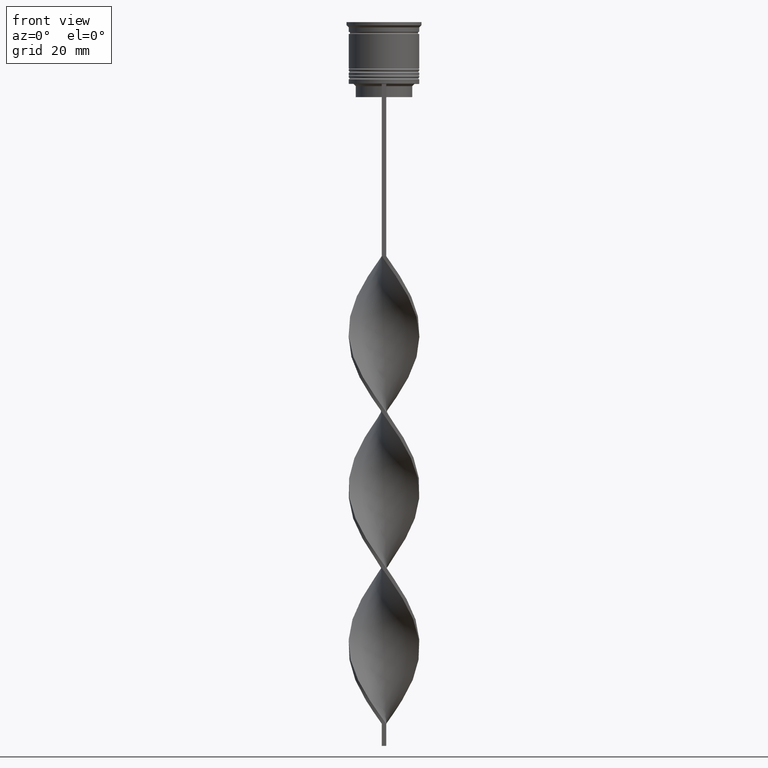
[diagram: clean part render]
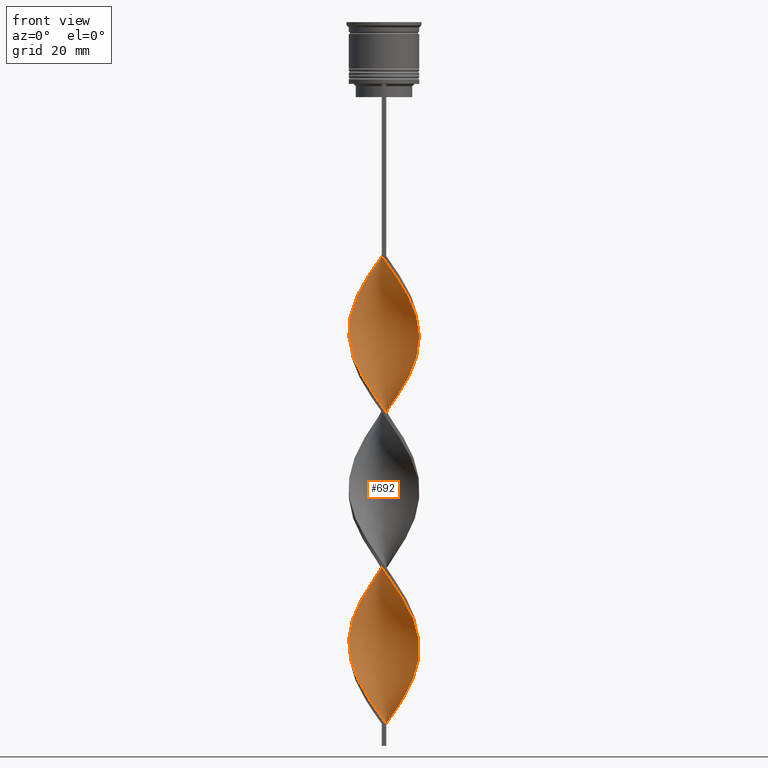
[diagram: same view with one face highlighted and labeled with its STEP entity id]
A machine part, front view. The second image highlights one B-rep face of the part: STEP entity #692.
In plain terms, the highlighted face is a freeform B-spline surface patch.
Its self-contained STEP definition (entity closure, byte-faithful):
#13 = EDGE_CURVE ( 'NONE', #1472, #1951, #1858, .T. ) ;
#23 = CARTESIAN_POINT ( 'NONE',  ( 1.340833882125408216, -7.947447882367158378, -89.51111111111111995 ) ) ;
#35 =( BOUNDED_CURVE ( )  B_SPLINE_CURVE ( 2, ( #1506, #651, #334, #1219, #3251, #670, #1523, #2590, #612, #1804, #2357, #3752, #3175, #3465, #1765, #887, #594, #37, #1748, #2886, #313, #1484, #1315, #1294, #3563, #119, #1591, #137, #1562, #104, #3616, #2470, #764, #2730, #2754, #1334, #2701, #3306, #428, #1260, #1917, #998, #161, #3637, #2431, #2147, #1280, #1865, #2455, #3595, #2415, #411, #1034, #743, #2164, #1051, #1576, #3576, #3320, #2108, #1895, #2179, #3033, #446, #2127, #1611, #1018, #3338, #981, #726, #393, #1880, #3016, #2715, #372, #2399, #1539, #2680, #89, #3269, #686, #1841, #2980, #3287, #704, #3002, #2545, #1428, #3444, #528, #1704 ),
 .UNSPECIFIED., .F., .T. ) 
 B_SPLINE_CURVE_WITH_KNOTS ( ( 3, 2, 2, 2, 2, 2, 2, 2, 2, 2, 2, 2, 2, 2, 2, 2, 2, 2, 2, 2, 2, 2, 2, 2, 2, 2, 2, 2, 2, 2, 2, 2, 2, 2, 2, 2, 2, 2, 2, 2, 2, 2, 2, 2, 2, 3 ),
 ( 0.000000000000000000, 0.01666666666666666644, 0.03333333333333333287, 0.05000000000000000971, 0.06666666666666666574, 0.08333333333333332871, 0.1000000000000000194, 0.1166666666666666546, 0.1333333333333333315, 0.1499999999999999944, 0.1666666666666666574, 0.1833333333333333204, 0.2000000000000000389, 0.2166666666666666741, 0.2333333333333333093, 0.2500000000000000000, 0.2666666666666666630, 0.2833333333333333259, 0.2999999999999999889, 0.3166666666666666519, 0.3333333333333333148, 0.3499999999999999223, 0.3666666666666666408, 0.3833333333333333592, 0.4000000000000000777, 0.4166666666666666852, 0.4333333333333333481, 0.4500000000000000111, 0.4666666666666666186, 0.4833333333333333370, 0.5000000000000000000, 0.5166666666666667185, 0.5333333333333333259, 0.5500000000000000444, 0.5666666666666666519, 0.5833333333333333703, 0.5999999999999999778, 0.6166666666666666963, 0.6333333333333333037, 0.6500000000000000222, 0.6666666666666666297, 0.6833333333333332371, 0.6999999999999998446, 0.7166666666666666741, 0.7333333333333332815, 0.7500000000000000000 ),
 .UNSPECIFIED. ) 
 CURVE ( )  GEOMETRIC_REPRESENTATION_ITEM ( )  RATIONAL_B_SPLINE_CURVE ( ( 1.000000000000000000, 0.9945218953682732899, 1.000000000000000000, 0.9945218953682732899, 1.000000000000000000, 0.9945218953682732899, 1.000000000000000000, 0.9945218953682732899, 1.000000000000000000, 0.9945218953682732899, 1.000000000000000000, 0.9945218953682732899, 1.000000000000000000, 0.9945218953682732899, 1.000000000000000000, 0.9945218953682732899, 1.000000000000000000, 0.9945218953682732899, 1.000000000000000000, 0.9945218953682732899, 1.000000000000000000, 0.9945218953682732899, 1.000000000000000000, 0.9945218953682732899, 1.000000000000000000, 0.9945218953682732899, 1.000000000000000000, 0.9945218953682732899, 1.000000000000000000, 0.9945218953682732899, 1.000000000000000000, 0.9945218953682732899, 1.000000000000000000, 0.9945218953682732899, 1.000000000000000000, 0.9945218953682732899, 1.000000000000000000, 0.9945218953682732899, 1.000000000000000000, 0.9945218953682732899, 1.000000000000000000, 0.9945218953682732899, 1.000000000000000000, 0.9945218953682732899, 1.000000000000000000, 0.9945218953682732899, 1.000000000000000000, 0.9945218953682732899, 1.000000000000000000, 0.9945218953682732899, 1.000000000000000000, 0.9945218953682732899, 1.000000000000000000, 0.9945218953682732899, 1.000000000000000000, 0.9945218953682732899, 1.000000000000000000, 0.9945218953682732899, 1.000000000000000000, 0.9945218953682732899, 1.000000000000000000, 0.9945218953682732899, 1.000000000000000000, 0.9945218953682732899, 1.000000000000000000, 0.9945218953682732899, 1.000000000000000000, 0.9945218953682732899, 1.000000000000000000, 0.9945218953682732899, 1.000000000000000000, 0.9945218953682732899, 1.000000000000000000, 0.9945218953682732899, 1.000000000000000000, 0.9945218953682732899, 1.000000000000000000, 0.9945218953682732899, 1.000000000000000000, 0.9945218953682732899, 1.000000000000000000, 0.9945218953682732899, 1.000000000000000000, 0.9945218953682732899, 1.000000000000000000, 0.9945218953682732899, 1.000000000000000000, 0.9945218953682732899, 1.000000000000000000, 0.9945218953682732899, 1.000000000000000000 ) ) 
 REPRESENTATION_ITEM ( '' )  );
#37 = CARTESIAN_POINT ( 'NONE',  ( -7.763755626116585873, -2.164223167868968734, -73.02222222222221149 ) ) ;
#39 = CARTESIAN_POINT ( 'NONE',  ( 2.152367326908981138, 7.721224960461567477, -156.6444444444444457 ) ) ;
#40 = CARTESIAN_POINT ( 'NONE',  ( -0.3408338821254136564, -8.052552117632835404, -157.8222222222221660 ) ) ;
#89 = CARTESIAN_POINT ( 'NONE',  ( -7.453943633173752303, -2.947664213147154655, -144.8666666666666742 ) ) ;
#91 = CARTESIAN_POINT ( 'NONE',  ( 0.5000000000000002220, 2.666666666666670515, -159.0000000000000000 ) ) ;
#97 = VERTEX_POINT ( 'NONE', #1822 ) ;
#104 = CARTESIAN_POINT ( 'NONE',  ( -0.3408338821254136564, -8.052552117632835404, -87.15555555555553724 ) ) ;
#108 = CARTESIAN_POINT ( 'NONE',  ( 0.4999999999999989453, -7.999999999999996447, -159.0000000000000000 ) ) ;
#110 = CARTESIAN_POINT ( 'NONE',  ( 3.710665873427697381, -7.104995339602904636, -93.04444444444443718 ) ) ;
#119 = CARTESIAN_POINT ( 'NONE',  ( -3.586635261345271442, -7.217742780431598781, -82.44444444444444287 ) ) ;
#137 = CARTESIAN_POINT ( 'NONE',  ( -2.007605570224932023, -7.805721184925808132, -84.79999999999998295 ) ) ;
#139 = CARTESIAN_POINT ( 'NONE',  ( 8.008439394580017634, 0.3389667584570904557, -71.84444444444444855 ) ) ;
#143 = CARTESIAN_POINT ( 'NONE',  ( 2.007605570224933356, 7.805721184925808132, -120.1333333333333400 ) ) ;
#161 = CARTESIAN_POINT ( 'NONE',  ( 7.762960627548698866, -1.996607696852002345, -102.4666666666666686 ) ) ;
#166 = CARTESIAN_POINT ( 'NONE',  ( 5.008911780959354410, 6.314314381860021363, -115.4222222222222456 ) ) ;
#182 = CARTESIAN_POINT ( 'NONE',  ( 4.297773521152313592, -6.766028581145818954, -60.06666666666666288 ) ) ;
#190 = CARTESIAN_POINT ( 'NONE',  ( 5.106790515527261931, 6.178243328853344707, -81.26666666666666572 ) ) ;
#199 = CARTESIAN_POINT ( 'NONE',  ( 7.453943633173757632, -2.947664213147156875, -67.13333333333333997 ) ) ;
#212 = CARTESIAN_POINT ( 'NONE',  ( -2.007605570224932467, 7.805721184925816125, -91.86666666666666003 ) ) ;
#213 = CARTESIAN_POINT ( 'NONE',  ( -5.610593300639724390, -5.724617263609558471, -78.91111111111111143 ) ) ;
#221 = CARTESIAN_POINT ( 'NONE',  ( -6.803297758105514070, -4.321446859207497049, -113.0666666666666629 ) ) ;
#232 = CARTESIAN_POINT ( 'NONE',  ( -8.044066236508127687, -0.5027541397817575364, -70.66666666666667140 ) ) ;
#240 = CARTESIAN_POINT ( 'NONE',  ( 0.3408338821254121020, -8.052552117632842510, -124.8444444444444343 ) ) ;
#249 = CARTESIAN_POINT ( 'NONE',  ( 3.710665873427705375, 7.104995339602909077, -83.62222222222222001 ) ) ;
#251 = CARTESIAN_POINT ( 'NONE',  ( -7.762960627548698866, 1.996607696852001457, -67.13333333333333997 ) ) ;
#257 = CARTESIAN_POINT ( 'NONE',  ( -7.972812552651899587, -1.180687656695935006, -108.3555555555555543 ) ) ;
#268 = CARTESIAN_POINT ( 'NONE',  ( 7.178203230275513214, 3.566987298107780813, -76.55555555555555713 ) ) ;
#281 = CARTESIAN_POINT ( 'NONE',  ( -0.4999999999999998890, -8.000000000000003553, -123.6666666666666714 ) ) ;
#301 = CARTESIAN_POINT ( 'NONE',  ( 0.5000000000000008882, 8.000000000000003553, -159.0000000000000000 ) ) ;
#313 = CARTESIAN_POINT ( 'NONE',  ( -6.678203230275506996, -4.433012701892216079, -76.55555555555555713 ) ) ;
#315 = CARTESIAN_POINT ( 'NONE',  ( 5.106790515527261931, 6.178243328853344707, -151.9333333333333371 ) ) ;
#316 = CARTESIAN_POINT ( 'NONE',  ( -7.763755626116584985, -2.164223167868968734, -143.6888888888888971 ) ) ;
#334 = CARTESIAN_POINT ( 'NONE',  ( -2.152367326908976697, 7.721224960461563036, -55.35555555555555429 ) ) ;
#348 = DIRECTION ( 'NONE',  ( 0.000000000000000000, 1.000000000000000000, 0.000000000000000000 ) ) ;
#356 = CARTESIAN_POINT ( 'NONE',  ( -2.007605570224932023, -7.805721184925808132, -155.4666666666666686 ) ) ;
#358 = CARTESIAN_POINT ( 'NONE',  ( 5.008911780959354410, -6.314314381860031133, -61.24444444444443292 ) ) ;
#365 = LINE ( 'NONE', #2617, #1061 ) ;
#372 = CARTESIAN_POINT ( 'NONE',  ( -8.008439394580010529, 0.3389667584570925096, -140.1555555555555657 ) ) ;
#393 = CARTESIAN_POINT ( 'NONE',  ( -7.178203230275506108, 3.566987298107779925, -135.4444444444444571 ) ) ;
#411 = CARTESIAN_POINT ( 'NONE',  ( 6.212274820320097035, 5.134920145359093802, -113.0666666666666629 ) ) ;
#415 = CARTESIAN_POINT ( 'NONE',  ( 2.963900771692541625, -7.495002038555965029, -91.86666666666666003 ) ) ;
#428 = CARTESIAN_POINT ( 'NONE',  ( 6.279723906998579075, -4.981472438132168001, -97.75555555555555998 ) ) ;
#446 = CARTESIAN_POINT ( 'NONE',  ( -2.963900771692542069, 7.495002038555965029, -127.2000000000000028 ) ) ;
#448 = CARTESIAN_POINT ( 'NONE',  ( -0.4999999999999998890, -8.000000000000003553, -53.00000000000000000 ) ) ;
#470 = CARTESIAN_POINT ( 'NONE',  ( 2.963900771692545177, 7.495002038555971247, -84.79999999999998295 ) ) ;
#481 = CARTESIAN_POINT ( 'NONE',  ( -7.763755626116591202, 2.164223167868974951, -103.6444444444444457 ) ) ;
#482 = CARTESIAN_POINT ( 'NONE',  ( -2.007605570224932023, -7.805721184925808132, -84.79999999999998295 ) ) ;
#489 = CARTESIAN_POINT ( 'NONE',  ( 6.212274820320101476, -5.134920145359100019, -63.60000000000000142 ) ) ;
#492 = CARTESIAN_POINT ( 'NONE',  ( 6.678203230275510549, 4.433012701892212526, -111.8888888888888999 ) ) ;
#499 = CARTESIAN_POINT ( 'NONE',  ( -7.178203230275514990, -3.566987298107776816, -111.8888888888888999 ) ) ;
#504 = EDGE_CURVE ( 'NONE', #1472, #97, #365, .T. ) ;
#508 = CARTESIAN_POINT ( 'NONE',  ( -3.710665873427708927, -7.104995339602907301, -118.9555555555555628 ) ) ;
#520 = CARTESIAN_POINT ( 'NONE',  ( -0.3408338821254087714, 8.052552117632844286, -89.51111111111111995 ) ) ;
#522 = CARTESIAN_POINT ( 'NONE',  ( -2.797120415785101954, -7.511731982678703012, -83.62222222222222001 ) ) ;
#526 = CARTESIAN_POINT ( 'NONE',  ( 0.4999999999999989453, -7.999999999999996447, -159.0000000000000000 ) ) ;
#528 = CARTESIAN_POINT ( 'NONE',  ( -0.3408338821254136564, -8.052552117632835404, -157.8222222222221944 ) ) ;
#541 = CARTESIAN_POINT ( 'NONE',  ( -7.553108702445514133, -2.812527737008061912, -110.7111111111110944 ) ) ;
#543 = CARTESIAN_POINT ( 'NONE',  ( -7.178203230275506108, 3.566987298107779925, -64.77777777777778567 ) ) ;
#549 = CARTESIAN_POINT ( 'NONE',  ( -7.144131640230921398, 3.731105258425349014, -101.2888888888888914 ) ) ;
#559 = CARTESIAN_POINT ( 'NONE',  ( -7.144131640230920510, 3.731105258425349014, -101.2888888888888914 ) ) ;
#560 = CARTESIAN_POINT ( 'NONE',  ( -6.279723906998579963, 4.981472438132166225, -62.42222222222221717 ) ) ;
#581 = CARTESIAN_POINT ( 'NONE',  ( 7.762960627548698866, -1.996607696852002345, -102.4666666666666686 ) ) ;
#594 = CARTESIAN_POINT ( 'NONE',  ( -7.903910931312356780, -1.333488653825362746, -71.84444444444444855 ) ) ;
#601 = CARTESIAN_POINT ( 'NONE',  ( 1.174219726175172562, -7.929136651279328873, -126.0222222222222257 ) ) ;
#612 = CARTESIAN_POINT ( 'NONE',  ( -6.279723906998579963, 4.981472438132166225, -62.42222222222221717 ) ) ;
#618 = CARTESIAN_POINT ( 'NONE',  ( -2.152367326908982026, -7.721224960461567477, -121.3111111111111171 ) ) ;
#651 = CARTESIAN_POINT ( 'NONE',  ( -1.340833882125411103, 7.947447882367156602, -54.17777777777777715 ) ) ;
#655 = CARTESIAN_POINT ( 'NONE',  ( -6.803297758105507853, 4.321446859207494384, -134.2666666666666231 ) ) ;
#670 = CARTESIAN_POINT ( 'NONE',  ( -4.457430975162859355, 6.714988640649843354, -58.88888888888888573 ) ) ;
#686 = CARTESIAN_POINT ( 'NONE',  ( -6.678203230275506996, -4.433012701892216079, -147.2222222222222285 ) ) ;
#692 = ADVANCED_FACE ( 'NONE', ( #1683 ), #718, .T. ) ;
#704 = CARTESIAN_POINT ( 'NONE',  ( -4.297773521152310039, -6.766028581145813625, -151.9333333333333371 ) ) ;
#718 =( BOUNDED_SURFACE ( )  B_SPLINE_SURFACE ( 1, 2, ( 
 ( #3356, #1060, #3417, #3399, #1933, #820, #2248, #842, #3671, #2218, #1984, #860, #2854, #3130, #1136, #3439, #1085, #2823, #2539, #780, #268, #2502, #2273, #1404, #190, #2780, #249, #1361, #1963, #3106, #1998, #520, #1643, #212, #3379, #3148, #1422, #2556, #3691, #803, #2482, #559, #2800, #481, #3647, #3072, #2193, #1949, #3088, #541, #499, #1661, #1700, #1386, #2839, #1103, #3722, #1172, #618, #3241, #3742, #2578, #601, #2346, #3529, #3455, #1755, #875, #2014, #2440, #2171, #2967, #3124, #3686, #2266, #2834, #2760, #3349, #773, #3664, #1469, #2341, #3491, #2609, #315, #1486, #1221, #2628, #39, #3509, #927 ),
 ( #2064, #3142, #1156, #3131, #1405, #1662, #804, #843, #560, #3692, #543, #1716, #251, #1423, #2557, #232, #3723, #1441, #782, #2802, #2579, #1137, #213, #1387, #2274, #2523, #522, #482, #1363, #1104, #3475, #23, #3184, #415, #110, #3580, #2326, #2892, #3456, #2719, #969, #1267, #581, #1735, #2113, #3274, #1566, #1002, #1596, #3325, #492, #1095, #2208, #166, #2226, #2460, #3369, #143, #749, #1900, #3040, #3390, #1617, #3235, #1785, #2404, #2359, #2945, #1283, #655, #1542, #1240, #2418, #1264, #2132, #1767, #2905, #316, #1487, #3566, #2380, #3525, #1806, #2963, #2629, #967, #2926, #356, #2097, #40, #2662 ) ),
 .UNSPECIFIED., .F., .F., .F. ) 
 B_SPLINE_SURFACE_WITH_KNOTS ( ( 2, 2 ),
 ( 3, 2, 2, 2, 2, 2, 2, 2, 2, 2, 2, 2, 2, 2, 2, 2, 2, 2, 2, 2, 2, 2, 2, 2, 2, 2, 2, 2, 2, 2, 2, 2, 2, 2, 2, 2, 2, 2, 2, 2, 2, 2, 2, 2, 2, 3 ),
 ( 0.000000000000000000, 1.000000000000000000 ),
 ( 0.000000000000000000, 0.01666666666666666644, 0.03333333333333333287, 0.05000000000000000278, 0.06666666666666666574, 0.08333333333333332871, 0.1000000000000000056, 0.1166666666666666685, 0.1333333333333333315, 0.1499999999999999944, 0.1666666666666666574, 0.1833333333333333204, 0.2000000000000000111, 0.2166666666666666741, 0.2333333333333333370, 0.2500000000000000000, 0.2666666666666666630, 0.2833333333333333259, 0.2999999999999999889, 0.3166666666666666519, 0.3333333333333333148, 0.3499999999999999778, 0.3666666666666666408, 0.3833333333333333592, 0.4000000000000000222, 0.4166666666666666852, 0.4333333333333333481, 0.4500000000000000111, 0.4666666666666666741, 0.4833333333333333370, 0.5000000000000000000, 0.5166666666666667185, 0.5333333333333333259, 0.5500000000000000444, 0.5666666666666666519, 0.5833333333333333703, 0.5999999999999999778, 0.6166666666666666963, 0.6333333333333333037, 0.6500000000000000222, 0.6666666666666666297, 0.6833333333333333481, 0.6999999999999999556, 0.7166666666666666741, 0.7333333333333332815, 0.7500000000000000000 ),
 .UNSPECIFIED. ) 
 GEOMETRIC_REPRESENTATION_ITEM ( )  RATIONAL_B_SPLINE_SURFACE ( (
 ( 1.000000000000000000, 0.9945218953682732899, 1.000000000000000000, 0.9945218953682732899, 1.000000000000000000, 0.9945218953682732899, 1.000000000000000000, 0.9945218953682732899, 1.000000000000000000, 0.9945218953682732899, 1.000000000000000000, 0.9945218953682732899, 1.000000000000000000, 0.9945218953682732899, 1.000000000000000000, 0.9945218953682732899, 1.000000000000000000, 0.9945218953682732899, 1.000000000000000000, 0.9945218953682732899, 1.000000000000000000, 0.9945218953682732899, 1.000000000000000000, 0.9945218953682732899, 1.000000000000000000, 0.9945218953682732899, 1.000000000000000000, 0.9945218953682732899, 1.000000000000000000, 0.9945218953682732899, 1.000000000000000000, 0.9945218953682732899, 1.000000000000000000, 0.9945218953682732899, 1.000000000000000000, 0.9945218953682732899, 1.000000000000000000, 0.9945218953682732899, 1.000000000000000000, 0.9945218953682732899, 1.000000000000000000, 0.9945218953682732899, 1.000000000000000000, 0.9945218953682732899, 1.000000000000000000, 0.9945218953682732899, 1.000000000000000000, 0.9945218953682732899, 1.000000000000000000, 0.9945218953682732899, 1.000000000000000000, 0.9945218953682732899, 1.000000000000000000, 0.9945218953682732899, 1.000000000000000000, 0.9945218953682732899, 1.000000000000000000, 0.9945218953682732899, 1.000000000000000000, 0.9945218953682732899, 1.000000000000000000, 0.9945218953682732899, 1.000000000000000000, 0.9945218953682732899, 1.000000000000000000, 0.9945218953682732899, 1.000000000000000000, 0.9945218953682732899, 1.000000000000000000, 0.9945218953682732899, 1.000000000000000000, 0.9945218953682732899, 1.000000000000000000, 0.9945218953682732899, 1.000000000000000000, 0.9945218953682732899, 1.000000000000000000, 0.9945218953682732899, 1.000000000000000000, 0.9945218953682732899, 1.000000000000000000, 0.9945218953682732899, 1.000000000000000000, 0.9945218953682732899, 1.000000000000000000, 0.9945218953682732899, 1.000000000000000000, 0.9945218953682732899, 1.000000000000000000, 0.9945218953682732899, 1.000000000000000000),
 ( 1.000000000000000000, 0.9945218953682732899, 1.000000000000000000, 0.9945218953682732899, 1.000000000000000000, 0.9945218953682732899, 1.000000000000000000, 0.9945218953682732899, 1.000000000000000000, 0.9945218953682732899, 1.000000000000000000, 0.9945218953682732899, 1.000000000000000000, 0.9945218953682732899, 1.000000000000000000, 0.9945218953682732899, 1.000000000000000000, 0.9945218953682732899, 1.000000000000000000, 0.9945218953682732899, 1.000000000000000000, 0.9945218953682732899, 1.000000000000000000, 0.9945218953682732899, 1.000000000000000000, 0.9945218953682732899, 1.000000000000000000, 0.9945218953682732899, 1.000000000000000000, 0.9945218953682732899, 1.000000000000000000, 0.9945218953682732899, 1.000000000000000000, 0.9945218953682732899, 1.000000000000000000, 0.9945218953682732899, 1.000000000000000000, 0.9945218953682732899, 1.000000000000000000, 0.9945218953682732899, 1.000000000000000000, 0.9945218953682732899, 1.000000000000000000, 0.9945218953682732899, 1.000000000000000000, 0.9945218953682732899, 1.000000000000000000, 0.9945218953682732899, 1.000000000000000000, 0.9945218953682732899, 1.000000000000000000, 0.9945218953682732899, 1.000000000000000000, 0.9945218953682732899, 1.000000000000000000, 0.9945218953682732899, 1.000000000000000000, 0.9945218953682732899, 1.000000000000000000, 0.9945218953682732899, 1.000000000000000000, 0.9945218953682732899, 1.000000000000000000, 0.9945218953682732899, 1.000000000000000000, 0.9945218953682732899, 1.000000000000000000, 0.9945218953682732899, 1.000000000000000000, 0.9945218953682732899, 1.000000000000000000, 0.9945218953682732899, 1.000000000000000000, 0.9945218953682732899, 1.000000000000000000, 0.9945218953682732899, 1.000000000000000000, 0.9945218953682732899, 1.000000000000000000, 0.9945218953682732899, 1.000000000000000000, 0.9945218953682732899, 1.000000000000000000, 0.9945218953682732899, 1.000000000000000000, 0.9945218953682732899, 1.000000000000000000, 0.9945218953682732899, 1.000000000000000000, 0.9945218953682732899, 1.000000000000000000) ) ) 
 REPRESENTATION_ITEM ( '' )  SURFACE ( )  );
#726 = CARTESIAN_POINT ( 'NONE',  ( -6.803297758105507853, 4.321446859207494384, -134.2666666666666515 ) ) ;
#743 = CARTESIAN_POINT ( 'NONE',  ( 5.008911780959355298, 6.314314381860021363, -115.4222222222222314 ) ) ;
#746 = CARTESIAN_POINT ( 'NONE',  ( 4.457430975162866460, 6.714988640649846019, -82.44444444444444287 ) ) ;
#749 = CARTESIAN_POINT ( 'NONE',  ( 1.174219726175175671, 7.929136651279319992, -121.3111111111111171 ) ) ;
#764 = CARTESIAN_POINT ( 'NONE',  ( 2.152367326908974476, -7.721224960461563036, -90.68888888888888289 ) ) ;
#773 = CARTESIAN_POINT ( 'NONE',  ( 7.762960627548706860, 1.996607696852002789, -144.8666666666666742 ) ) ;
#780 = CARTESIAN_POINT ( 'NONE',  ( 7.553108702445513245, 2.812527737008064577, -75.37777777777777999 ) ) ;
#782 = CARTESIAN_POINT ( 'NONE',  ( -7.453943633173752303, -2.947664213147154655, -74.20000000000000284 ) ) ;
#791 = CARTESIAN_POINT ( 'NONE',  ( 7.178203230275513214, 3.566987298107780813, -76.55555555555555713 ) ) ;
#803 = CARTESIAN_POINT ( 'NONE',  ( -6.212274820320100588, 5.134920145359100019, -98.93333333333332291 ) ) ;
#804 = CARTESIAN_POINT ( 'NONE',  ( -5.106790515527257490, 6.178243328853340266, -60.06666666666666288 ) ) ;
#811 = CARTESIAN_POINT ( 'NONE',  ( 3.586635261345271886, -7.217742780431606775, -129.5555555555555429 ) ) ;
#820 = CARTESIAN_POINT ( 'NONE',  ( 3.586635261345271442, -7.217742780431606775, -58.88888888888889284 ) ) ;
#829 = CARTESIAN_POINT ( 'NONE',  ( 2.152367326908981138, 7.721224960461567477, -156.6444444444444457 ) ) ;
#831 = ORIENTED_EDGE ( 'NONE', *, *, #1114, .T. ) ;
#842 = CARTESIAN_POINT ( 'NONE',  ( 5.008911780959353521, -6.314314381860030245, -61.24444444444443292 ) ) ;
#843 = CARTESIAN_POINT ( 'NONE',  ( -5.756150055891653849, 5.641498017056839842, -61.24444444444443292 ) ) ;
#852 = CARTESIAN_POINT ( 'NONE',  ( -6.678203230275511437, 4.433012701892224072, -100.1111111111111143 ) ) ;
#860 = CARTESIAN_POINT ( 'NONE',  ( 7.144131640230924063, -3.731105258425344129, -65.95555555555556282 ) ) ;
#866 = CARTESIAN_POINT ( 'NONE',  ( 7.178203230275513214, 3.566987298107780813, -147.2222222222222285 ) ) ;
#875 = CARTESIAN_POINT ( 'NONE',  ( 5.008911780959353521, -6.314314381860030245, -131.9111111111111256 ) ) ;
#885 = CARTESIAN_POINT ( 'NONE',  ( 7.972812552651897811, 1.180687656695939447, -143.6888888888888971 ) ) ;
#887 = CARTESIAN_POINT ( 'NONE',  ( -8.044066236508127687, -0.5027541397817575364, -70.66666666666667140 ) ) ;
#927 = CARTESIAN_POINT ( 'NONE',  ( 0.5000000000000008882, 8.000000000000003553, -159.0000000000000000 ) ) ;
#946 = CARTESIAN_POINT ( 'NONE',  ( -4.297773521152312703, 6.766028581145818954, -95.40000000000000568 ) ) ;
#967 = CARTESIAN_POINT ( 'NONE',  ( -3.586635261345270997, -7.217742780431598781, -153.1111111111110858 ) ) ;
#969 = CARTESIAN_POINT ( 'NONE',  ( 7.178203230275505220, -3.566987298107782589, -100.1111111111111143 ) ) ;
#971 = CARTESIAN_POINT ( 'NONE',  ( 3.586635261345271886, -7.217742780431606775, -58.88888888888888573 ) ) ;
#981 = CARTESIAN_POINT ( 'NONE',  ( -6.279723906998579963, 4.981472438132166225, -133.0888888888889028 ) ) ;
#998 = CARTESIAN_POINT ( 'NONE',  ( 7.553108702445503475, -2.812527737008069018, -101.2888888888888914 ) ) ;
#1002 = CARTESIAN_POINT ( 'NONE',  ( 7.763755626116586761, 2.164223167868963404, -108.3555555555555543 ) ) ;
#1018 = CARTESIAN_POINT ( 'NONE',  ( -5.106790515527257490, 6.178243328853340266, -130.7333333333333485 ) ) ;
#1034 = CARTESIAN_POINT ( 'NONE',  ( 5.610593300639725278, 5.724617263609557583, -114.2444444444444542 ) ) ;
#1036 = CARTESIAN_POINT ( 'NONE',  ( 6.803297758105513182, 4.321446859207497937, -77.73333333333333428 ) ) ;
#1051 = CARTESIAN_POINT ( 'NONE',  ( 3.586635261345272330, 7.217742780431597893, -117.7777777777777857 ) ) ;
#1060 = CARTESIAN_POINT ( 'NONE',  ( 0.3408338821254121020, -8.052552117632842510, -54.17777777777777715 ) ) ;
#1061 = VECTOR ( 'NONE', #348, 1000.000000000000000 ) ;
#1070 = CARTESIAN_POINT ( 'NONE',  ( 7.762960627548706860, 1.996607696852002789, -74.20000000000000284 ) ) ;
#1085 = CARTESIAN_POINT ( 'NONE',  ( 8.008439394580017634, 0.3389667584570904557, -71.84444444444444855 ) ) ;
#1095 = CARTESIAN_POINT ( 'NONE',  ( 6.212274820320097035, 5.134920145359093802, -113.0666666666666487 ) ) ;
#1103 = CARTESIAN_POINT ( 'NONE',  ( -4.457430975162865572, -6.714988640649846019, -117.7777777777777999 ) ) ;
#1104 = CARTESIAN_POINT ( 'NONE',  ( -0.3408338821254136564, -8.052552117632835404, -87.15555555555553724 ) ) ;
#1109 = CARTESIAN_POINT ( 'NONE',  ( 5.008911780959354410, -6.314314381860031133, -131.9111111111111256 ) ) ;
#1114 = EDGE_CURVE ( 'NONE', #97, #2428, #35, .T. ) ;
#1126 = CARTESIAN_POINT ( 'NONE',  ( -5.756150055891663619, -5.641498017056838954, -115.4222222222222314 ) ) ;
#1136 = CARTESIAN_POINT ( 'NONE',  ( 7.903910931312363886, -1.333488653825366521, -69.48888888888889426 ) ) ;
#1137 = CARTESIAN_POINT ( 'NONE',  ( -6.212274820320096147, -5.134920145359094690, -77.73333333333333428 ) ) ;
#1148 = CARTESIAN_POINT ( 'NONE',  ( 8.008439394580017634, 0.3389667584570904557, -142.5111111111111200 ) ) ;
#1156 = CARTESIAN_POINT ( 'NONE',  ( -2.152367326908976697, 7.721224960461563036, -55.35555555555555429 ) ) ;
#1165 = CARTESIAN_POINT ( 'NONE',  ( 7.903910931312363886, -1.333488653825366521, -140.1555555555555657 ) ) ;
#1172 = CARTESIAN_POINT ( 'NONE',  ( -2.963900771692546510, -7.495002038555971247, -120.1333333333333400 ) ) ;
#1219 = CARTESIAN_POINT ( 'NONE',  ( -2.963900771692542069, 7.495002038555965029, -56.53333333333332433 ) ) ;
#1221 = CARTESIAN_POINT ( 'NONE',  ( 3.710665873427705375, 7.104995339602909077, -154.2888888888888914 ) ) ;
#1240 = CARTESIAN_POINT ( 'NONE',  ( -7.553108702445506140, 2.812527737008064133, -136.6222222222222342 ) ) ;
#1243 = CARTESIAN_POINT ( 'NONE',  ( -0.3408338821254087714, 8.052552117632844286, -89.51111111111110574 ) ) ;
#1260 = CARTESIAN_POINT ( 'NONE',  ( 6.803297758105506965, -4.321446859207495272, -98.93333333333332291 ) ) ;
#1264 = CARTESIAN_POINT ( 'NONE',  ( -7.972812552651889817, 1.180687656695941001, -138.9777777777777885 ) ) ;
#1267 = CARTESIAN_POINT ( 'NONE',  ( 7.553108702445504363, -2.812527737008069462, -101.2888888888888914 ) ) ;
#1280 = CARTESIAN_POINT ( 'NONE',  ( 7.903910931312356780, 1.333488653825360082, -107.1777777777777771 ) ) ;
#1283 = CARTESIAN_POINT ( 'NONE',  ( -6.279723906998579963, 4.981472438132166225, -133.0888888888889028 ) ) ;
#1294 = CARTESIAN_POINT ( 'NONE',  ( -5.008911780959351745, -6.314314381860024028, -80.08888888888888857 ) ) ;
#1315 = CARTESIAN_POINT ( 'NONE',  ( -5.610593300639724390, -5.724617263609558471, -78.91111111111111143 ) ) ;
#1334 = CARTESIAN_POINT ( 'NONE',  ( 4.457430975162857578, -6.714988640649844243, -94.22222222222221433 ) ) ;
#1336 = CARTESIAN_POINT ( 'NONE',  ( 5.106790515527261931, 6.178243328853344707, -81.26666666666666572 ) ) ;
#1361 = CARTESIAN_POINT ( 'NONE',  ( 2.963900771692545177, 7.495002038555971247, -84.79999999999998295 ) ) ;
#1363 = CARTESIAN_POINT ( 'NONE',  ( -1.174219726175174561, -7.929136651279319992, -85.97777777777777430 ) ) ;
#1373 = CARTESIAN_POINT ( 'NONE',  ( 3.710665873427705375, 7.104995339602909077, -154.2888888888888914 ) ) ;
#1386 = CARTESIAN_POINT ( 'NONE',  ( -5.756150055891663619, -5.641498017056838954, -115.4222222222222456 ) ) ;
#1387 = CARTESIAN_POINT ( 'NONE',  ( -5.008911780959350857, -6.314314381860024028, -80.08888888888890278 ) ) ;
#1393 = CARTESIAN_POINT ( 'NONE',  ( -8.044066236508134793, 0.5027541397817596458, -106.0000000000000000 ) ) ;
#1404 = CARTESIAN_POINT ( 'NONE',  ( 5.756150055891660955, 5.641498017056843395, -80.08888888888890278 ) ) ;
#1405 = CARTESIAN_POINT ( 'NONE',  ( -3.710665873427700490, 7.104995339602903748, -57.71111111111110858 ) ) ;
#1413 = CARTESIAN_POINT ( 'NONE',  ( 4.457430975162866460, 6.714988640649846019, -153.1111111111111143 ) ) ;
#1422 = CARTESIAN_POINT ( 'NONE',  ( -4.297773521152312703, 6.766028581145818954, -95.40000000000000568 ) ) ;
#1423 = CARTESIAN_POINT ( 'NONE',  ( -7.972812552651889817, 1.180687656695941001, -68.31111111111111711 ) ) ;
#1428 = CARTESIAN_POINT ( 'NONE',  ( -2.007605570224932023, -7.805721184925808132, -155.4666666666666686 ) ) ;
#1430 = CARTESIAN_POINT ( 'NONE',  ( -7.453943633173757632, 2.947664213147157763, -102.4666666666666686 ) ) ;
#1441 = CARTESIAN_POINT ( 'NONE',  ( -7.763755626116584985, -2.164223167868968734, -73.02222222222219727 ) ) ;
#1469 = CARTESIAN_POINT ( 'NONE',  ( 7.178203230275513214, 3.566987298107780813, -147.2222222222222285 ) ) ;
#1472 = VERTEX_POINT ( 'NONE', #3132 ) ;
#1484 = CARTESIAN_POINT ( 'NONE',  ( -6.212274820320096147, -5.134920145359094690, -77.73333333333333428 ) ) ;
#1486 = CARTESIAN_POINT ( 'NONE',  ( 4.457430975162865572, 6.714988640649846907, -153.1111111111110858 ) ) ;
#1487 = CARTESIAN_POINT ( 'NONE',  ( -7.453943633173752303, -2.947664213147154655, -144.8666666666666742 ) ) ;
#1506 = CARTESIAN_POINT ( 'NONE',  ( -0.4999999999999998890, 7.999999999999996447, -53.00000000000000000 ) ) ;
#1523 = CARTESIAN_POINT ( 'NONE',  ( -5.106790515527257490, 6.178243328853340266, -60.06666666666666288 ) ) ;
#1526 = CARTESIAN_POINT ( 'NONE',  ( 7.763755626116591202, -2.164223167868972286, -68.31111111111111711 ) ) ;
#1539 = CARTESIAN_POINT ( 'NONE',  ( -7.903910931312356780, -1.333488653825362746, -142.5111111111111200 ) ) ;
#1542 = CARTESIAN_POINT ( 'NONE',  ( -7.178203230275506108, 3.566987298107779925, -135.4444444444444571 ) ) ;
#1562 = CARTESIAN_POINT ( 'NONE',  ( -1.174219726175174561, -7.929136651279319992, -85.97777777777777430 ) ) ;
#1566 = CARTESIAN_POINT ( 'NONE',  ( 7.903910931312356780, 1.333488653825360082, -107.1777777777777771 ) ) ;
#1576 = CARTESIAN_POINT ( 'NONE',  ( 2.797120415785105951, 7.511731982678701236, -118.9555555555555628 ) ) ;
#1591 = CARTESIAN_POINT ( 'NONE',  ( -2.797120415785101954, -7.511731982678703012, -83.62222222222222001 ) ) ;
#1593 = CARTESIAN_POINT ( 'NONE',  ( 7.903910931312363886, -1.333488653825366521, -69.48888888888889426 ) ) ;
#1596 = CARTESIAN_POINT ( 'NONE',  ( 7.453943633173752303, 2.947664213147153767, -109.5333333333333456 ) ) ;
#1611 = CARTESIAN_POINT ( 'NONE',  ( -4.457430975162859355, 6.714988640649843354, -129.5555555555555429 ) ) ;
#1614 = CARTESIAN_POINT ( 'NONE',  ( 2.007605570224933356, -7.805721184925815237, -56.53333333333332433 ) ) ;
#1617 = CARTESIAN_POINT ( 'NONE',  ( -2.152367326908976697, 7.721224960461563036, -126.0222222222222257 ) ) ;
#1635 = CARTESIAN_POINT ( 'NONE',  ( 2.797120415785102399, -7.511731982678711006, -57.71111111111110858 ) ) ;
#1643 = CARTESIAN_POINT ( 'NONE',  ( -1.174219726175170564, 7.929136651279328873, -90.68888888888888289 ) ) ;
#1652 = CARTESIAN_POINT ( 'NONE',  ( -1.174219726175170564, 7.929136651279328873, -90.68888888888888289 ) ) ;
#1661 = CARTESIAN_POINT ( 'NONE',  ( -6.803297758105513182, -4.321446859207497049, -113.0666666666666487 ) ) ;
#1662 = CARTESIAN_POINT ( 'NONE',  ( -4.457430975162859355, 6.714988640649843354, -58.88888888888889284 ) ) ;
#1671 = CARTESIAN_POINT ( 'NONE',  ( -7.553108702445513245, -2.812527737008062356, -110.7111111111111086 ) ) ;
#1683 = FACE_OUTER_BOUND ( 'NONE', #3645, .T. ) ;
#1690 = CARTESIAN_POINT ( 'NONE',  ( 8.044066236508134793, -0.5027541397817586466, -141.3333333333333428 ) ) ;
#1700 = CARTESIAN_POINT ( 'NONE',  ( -6.279723906998587957, -4.981472438132167113, -114.2444444444444542 ) ) ;
#1704 = CARTESIAN_POINT ( 'NONE',  ( 0.4999999999999989453, -7.999999999999996447, -159.0000000000000000 ) ) ;
#1706 = CARTESIAN_POINT ( 'NONE',  ( 6.678203230275512325, -4.433012701892221408, -135.4444444444444571 ) ) ;
#1716 = CARTESIAN_POINT ( 'NONE',  ( -7.553108702445506140, 2.812527737008064133, -65.95555555555556282 ) ) ;
#1735 = CARTESIAN_POINT ( 'NONE',  ( 7.972812552651889817, -1.180687656695943666, -103.6444444444444457 ) ) ;
#1747 = CARTESIAN_POINT ( 'NONE',  ( -7.903910931312363886, 1.333488653825370962, -104.8222222222222229 ) ) ;
#1748 = CARTESIAN_POINT ( 'NONE',  ( -7.453943633173752303, -2.947664213147154655, -74.20000000000000284 ) ) ;
#1755 = CARTESIAN_POINT ( 'NONE',  ( 4.297773521152313592, -6.766028581145818954, -130.7333333333333485 ) ) ;
#1765 = CARTESIAN_POINT ( 'NONE',  ( -8.008439394580010529, 0.3389667584570925096, -69.48888888888889426 ) ) ;
#1767 = CARTESIAN_POINT ( 'NONE',  ( -8.044066236508127687, -0.5027541397817575364, -141.3333333333333428 ) ) ;
#1785 = CARTESIAN_POINT ( 'NONE',  ( -3.710665873427700490, 7.104995339602903748, -128.3777777777777942 ) ) ;
#1804 = CARTESIAN_POINT ( 'NONE',  ( -6.803297758105507853, 4.321446859207494384, -63.60000000000000142 ) ) ;
#1806 = CARTESIAN_POINT ( 'NONE',  ( -5.610593300639724390, -5.724617263609558471, -149.5777777777777828 ) ) ;
#1811 = CARTESIAN_POINT ( 'NONE',  ( 0.3408338821254121020, -8.052552117632842510, -54.17777777777777715 ) ) ;
#1822 = CARTESIAN_POINT ( 'NONE',  ( -0.4999999999999998890, 7.999999999999996447, -53.00000000000000000 ) ) ;
#1841 = CARTESIAN_POINT ( 'NONE',  ( -6.212274820320096147, -5.134920145359094690, -148.4000000000000057 ) ) ;
#1858 =( BOUNDED_CURVE ( )  B_SPLINE_CURVE ( 2, ( #448, #1811, #3639, #1614, #1635, #971, #182, #358, #3340, #489, #2948, #3618, #199, #1526, #1593, #2205, #139, #2756, #1070, #1920, #791, #1036, #2492, #2664, #1336, #746, #3366, #470, #3657, #2472, #1940, #1243, #1652, #2732, #3527, #2789, #946, #2083, #3239, #2100, #852, #549, #1430, #2224, #1747, #1393, #3750, #257, #2814, #1671, #2865, #221, #2260, #1126, #3464, #3431, #508, #2829, #2529, #2296, #281, #240, #3698, #2845, #1992, #811, #3137, #1109, #2885, #3734, #1706, #2240, #3407, #2567, #1165, #1690, #1148, #885, #2282, #3447, #866, #3096, #2005, #2024, #3388, #1413, #1373, #1955, #829, #3173, #2547 ),
 .UNSPECIFIED., .F., .T. ) 
 B_SPLINE_CURVE_WITH_KNOTS ( ( 3, 2, 2, 2, 2, 2, 2, 2, 2, 2, 2, 2, 2, 2, 2, 2, 2, 2, 2, 2, 2, 2, 2, 2, 2, 2, 2, 2, 2, 2, 2, 2, 2, 2, 2, 2, 2, 2, 2, 2, 2, 2, 2, 2, 2, 3 ),
 ( 0.000000000000000000, 0.01666666666666666644, 0.03333333333333333287, 0.05000000000000000971, 0.06666666666666666574, 0.08333333333333332871, 0.1000000000000000194, 0.1166666666666666546, 0.1333333333333333315, 0.1499999999999999944, 0.1666666666666666574, 0.1833333333333333204, 0.2000000000000000389, 0.2166666666666666741, 0.2333333333333333093, 0.2500000000000000000, 0.2666666666666666630, 0.2833333333333333259, 0.2999999999999999889, 0.3166666666666666519, 0.3333333333333333148, 0.3499999999999999223, 0.3666666666666666408, 0.3833333333333333592, 0.4000000000000000777, 0.4166666666666666852, 0.4333333333333333481, 0.4500000000000000111, 0.4666666666666666186, 0.4833333333333333370, 0.5000000000000000000, 0.5166666666666667185, 0.5333333333333333259, 0.5500000000000000444, 0.5666666666666666519, 0.5833333333333333703, 0.5999999999999999778, 0.6166666666666666963, 0.6333333333333333037, 0.6500000000000000222, 0.6666666666666666297, 0.6833333333333332371, 0.6999999999999998446, 0.7166666666666666741, 0.7333333333333332815, 0.7500000000000000000 ),
 .UNSPECIFIED. ) 
 CURVE ( )  GEOMETRIC_REPRESENTATION_ITEM ( )  RATIONAL_B_SPLINE_CURVE ( ( 1.000000000000000000, 0.9945218953682732899, 1.000000000000000000, 0.9945218953682732899, 1.000000000000000000, 0.9945218953682732899, 1.000000000000000000, 0.9945218953682732899, 1.000000000000000000, 0.9945218953682732899, 1.000000000000000000, 0.9945218953682732899, 1.000000000000000000, 0.9945218953682732899, 1.000000000000000000, 0.9945218953682732899, 1.000000000000000000, 0.9945218953682732899, 1.000000000000000000, 0.9945218953682732899, 1.000000000000000000, 0.9945218953682732899, 1.000000000000000000, 0.9945218953682732899, 1.000000000000000000, 0.9945218953682732899, 1.000000000000000000, 0.9945218953682732899, 1.000000000000000000, 0.9945218953682732899, 1.000000000000000000, 0.9945218953682732899, 1.000000000000000000, 0.9945218953682732899, 1.000000000000000000, 0.9945218953682732899, 1.000000000000000000, 0.9945218953682732899, 1.000000000000000000, 0.9945218953682732899, 1.000000000000000000, 0.9945218953682732899, 1.000000000000000000, 0.9945218953682732899, 1.000000000000000000, 0.9945218953682732899, 1.000000000000000000, 0.9945218953682732899, 1.000000000000000000, 0.9945218953682732899, 1.000000000000000000, 0.9945218953682732899, 1.000000000000000000, 0.9945218953682732899, 1.000000000000000000, 0.9945218953682732899, 1.000000000000000000, 0.9945218953682732899, 1.000000000000000000, 0.9945218953682732899, 1.000000000000000000, 0.9945218953682732899, 1.000000000000000000, 0.9945218953682732899, 1.000000000000000000, 0.9945218953682732899, 1.000000000000000000, 0.9945218953682732899, 1.000000000000000000, 0.9945218953682732899, 1.000000000000000000, 0.9945218953682732899, 1.000000000000000000, 0.9945218953682732899, 1.000000000000000000, 0.9945218953682732899, 1.000000000000000000, 0.9945218953682732899, 1.000000000000000000, 0.9945218953682732899, 1.000000000000000000, 0.9945218953682732899, 1.000000000000000000, 0.9945218953682732899, 1.000000000000000000, 0.9945218953682732899, 1.000000000000000000, 0.9945218953682732899, 1.000000000000000000, 0.9945218953682732899, 1.000000000000000000 ) ) 
 REPRESENTATION_ITEM ( '' )  );
#1865 = CARTESIAN_POINT ( 'NONE',  ( 7.763755626116586761, 2.164223167868963404, -108.3555555555555543 ) ) ;
#1880 = CARTESIAN_POINT ( 'NONE',  ( -7.553108702445505251, 2.812527737008064577, -136.6222222222222342 ) ) ;
#1895 = CARTESIAN_POINT ( 'NONE',  ( -0.4999999999999998890, 7.999999999999996447, -123.6666666666666714 ) ) ;
#1900 = CARTESIAN_POINT ( 'NONE',  ( 0.3408338821254181528, 8.052552117632835404, -122.4888888888888800 ) ) ;
#1917 = CARTESIAN_POINT ( 'NONE',  ( 7.178203230275505220, -3.566987298107782589, -100.1111111111111143 ) ) ;
#1920 = CARTESIAN_POINT ( 'NONE',  ( 7.553108702445512357, 2.812527737008065021, -75.37777777777777999 ) ) ;
#1933 = CARTESIAN_POINT ( 'NONE',  ( 2.797120415785102399, -7.511731982678711006, -57.71111111111110858 ) ) ;
#1940 = CARTESIAN_POINT ( 'NONE',  ( 0.5000000000000008882, 8.000000000000003553, -88.33333333333332860 ) ) ;
#1949 = CARTESIAN_POINT ( 'NONE',  ( -7.972812552651898699, -1.180687656695935006, -108.3555555555555543 ) ) ;
#1951 = VERTEX_POINT ( 'NONE', #301 ) ;
#1955 = CARTESIAN_POINT ( 'NONE',  ( 2.963900771692545177, 7.495002038555971247, -155.4666666666666686 ) ) ;
#1963 = CARTESIAN_POINT ( 'NONE',  ( 2.152367326908981138, 7.721224960461567477, -85.97777777777777430 ) ) ;
#1984 = CARTESIAN_POINT ( 'NONE',  ( 6.678203230275512325, -4.433012701892221408, -64.77777777777778567 ) ) ;
#1992 = CARTESIAN_POINT ( 'NONE',  ( 2.797120415785102399, -7.511731982678711006, -128.3777777777777942 ) ) ;
#1998 = CARTESIAN_POINT ( 'NONE',  ( 0.5000000000000008882, 8.000000000000003553, -88.33333333333332860 ) ) ;
#2005 = CARTESIAN_POINT ( 'NONE',  ( 6.279723906998587069, 4.981472438132168001, -149.5777777777777828 ) ) ;
#2014 = CARTESIAN_POINT ( 'NONE',  ( 5.610593300639727055, -5.724617263609565576, -133.0888888888889028 ) ) ;
#2024 = CARTESIAN_POINT ( 'NONE',  ( 5.756150055891660067, 5.641498017056842507, -150.7555555555555600 ) ) ;
#2064 = CARTESIAN_POINT ( 'NONE',  ( -0.4999999999999998890, 7.999999999999996447, -53.00000000000000000 ) ) ;
#2083 = CARTESIAN_POINT ( 'NONE',  ( -5.008911780959351745, 6.314314381860032022, -96.57777777777776862 ) ) ;
#2097 = CARTESIAN_POINT ( 'NONE',  ( -1.174219726175174561, -7.929136651279319992, -156.6444444444444457 ) ) ;
#2100 = CARTESIAN_POINT ( 'NONE',  ( -6.212274820320100588, 5.134920145359100907, -98.93333333333332291 ) ) ;
#2108 = CARTESIAN_POINT ( 'NONE',  ( 0.3408338821254181528, 8.052552117632835404, -122.4888888888888800 ) ) ;
#2113 = CARTESIAN_POINT ( 'NONE',  ( 8.008439394580010529, -0.3389667584570969505, -104.8222222222222229 ) ) ;
#2127 = CARTESIAN_POINT ( 'NONE',  ( -3.710665873427700490, 7.104995339602903748, -128.3777777777777942 ) ) ;
#2132 = CARTESIAN_POINT ( 'NONE',  ( -8.008439394580010529, 0.3389667584570925096, -140.1555555555555657 ) ) ;
#2147 = CARTESIAN_POINT ( 'NONE',  ( 8.044066236508127687, 0.5027541397817566482, -106.0000000000000000 ) ) ;
#2164 = CARTESIAN_POINT ( 'NONE',  ( 4.297773521152310927, 6.766028581145813625, -116.6000000000000085 ) ) ;
#2171 = CARTESIAN_POINT ( 'NONE',  ( 6.678203230275512325, -4.433012701892221408, -135.4444444444444571 ) ) ;
#2179 = CARTESIAN_POINT ( 'NONE',  ( -1.340833882125411103, 7.947447882367156602, -124.8444444444444343 ) ) ;
#2193 = CARTESIAN_POINT ( 'NONE',  ( -8.008439394580017634, -0.3389667584570877357, -107.1777777777777771 ) ) ;
#2205 = CARTESIAN_POINT ( 'NONE',  ( 8.044066236508134793, -0.5027541397817586466, -70.66666666666667140 ) ) ;
#2208 = CARTESIAN_POINT ( 'NONE',  ( 5.610593300639725278, 5.724617263609557583, -114.2444444444444542 ) ) ;
#2218 = CARTESIAN_POINT ( 'NONE',  ( 6.212274820320101476, -5.134920145359099131, -63.60000000000000853 ) ) ;
#2224 = CARTESIAN_POINT ( 'NONE',  ( -7.763755626116591202, 2.164223167868974951, -103.6444444444444457 ) ) ;
#2226 = CARTESIAN_POINT ( 'NONE',  ( 4.297773521152310927, 6.766028581145813625, -116.6000000000000085 ) ) ;
#2240 = CARTESIAN_POINT ( 'NONE',  ( 7.144131640230924063, -3.731105258425344129, -136.6222222222222342 ) ) ;
#2248 = CARTESIAN_POINT ( 'NONE',  ( 4.297773521152313592, -6.766028581145818954, -60.06666666666666288 ) ) ;
#2260 = CARTESIAN_POINT ( 'NONE',  ( -6.279723906998587957, -4.981472438132167113, -114.2444444444444542 ) ) ;
#2266 = CARTESIAN_POINT ( 'NONE',  ( 7.903910931312363886, -1.333488653825366521, -140.1555555555555657 ) ) ;
#2273 = CARTESIAN_POINT ( 'NONE',  ( 6.279723906998587069, 4.981472438132168001, -78.91111111111111143 ) ) ;
#2274 = CARTESIAN_POINT ( 'NONE',  ( -4.297773521152310039, -6.766028581145813625, -81.26666666666666572 ) ) ;
#2282 = CARTESIAN_POINT ( 'NONE',  ( 7.762960627548706860, 1.996607696852002789, -144.8666666666666742 ) ) ;
#2296 = CARTESIAN_POINT ( 'NONE',  ( -1.340833882125418652, -7.947447882367163707, -122.4888888888888800 ) ) ;
#2326 = CARTESIAN_POINT ( 'NONE',  ( 5.106790515527256602, -6.178243328853340266, -95.40000000000000568 ) ) ;
#2328 = B_SPLINE_CURVE_WITH_KNOTS ( 'NONE', 3,
 ( #3252, #91, #3004, #108 ),
 .UNSPECIFIED., .F., .F.,
 ( 4, 4 ),
 ( 0.000000000000000000, 1.000000000000000000 ),
 .UNSPECIFIED. ) ;
#2341 = CARTESIAN_POINT ( 'NONE',  ( 6.803297758105512294, 4.321446859207497937, -148.4000000000000057 ) ) ;
#2346 = CARTESIAN_POINT ( 'NONE',  ( 2.007605570224933356, -7.805721184925815237, -127.2000000000000171 ) ) ;
#2357 = CARTESIAN_POINT ( 'NONE',  ( -7.178203230275506108, 3.566987298107779925, -64.77777777777778567 ) ) ;
#2359 = CARTESIAN_POINT ( 'NONE',  ( -5.106790515527257490, 6.178243328853340266, -130.7333333333333485 ) ) ;
#2380 = CARTESIAN_POINT ( 'NONE',  ( -6.678203230275506996, -4.433012701892216079, -147.2222222222222285 ) ) ;
#2399 = CARTESIAN_POINT ( 'NONE',  ( -8.044066236508127687, -0.5027541397817575364, -141.3333333333333428 ) ) ;
#2404 = CARTESIAN_POINT ( 'NONE',  ( -4.457430975162859355, 6.714988640649843354, -129.5555555555555429 ) ) ;
#2415 = CARTESIAN_POINT ( 'NONE',  ( 6.678203230275510549, 4.433012701892212526, -111.8888888888888999 ) ) ;
#2418 = CARTESIAN_POINT ( 'NONE',  ( -7.762960627548698866, 1.996607696852001457, -137.8000000000000114 ) ) ;
#2428 = VERTEX_POINT ( 'NONE', #526 ) ;
#2431 = CARTESIAN_POINT ( 'NONE',  ( 8.008439394580010529, -0.3389667584570969505, -104.8222222222222229 ) ) ;
#2440 = CARTESIAN_POINT ( 'NONE',  ( 6.212274820320101476, -5.134920145359099131, -134.2666666666666231 ) ) ;
#2455 = CARTESIAN_POINT ( 'NONE',  ( 7.453943633173752303, 2.947664213147153767, -109.5333333333333456 ) ) ;
#2460 = CARTESIAN_POINT ( 'NONE',  ( 3.586635261345271886, 7.217742780431597893, -117.7777777777777999 ) ) ;
#2470 = CARTESIAN_POINT ( 'NONE',  ( 1.340833882125408216, -7.947447882367158378, -89.51111111111110574 ) ) ;
#2472 = CARTESIAN_POINT ( 'NONE',  ( 1.340833882125414211, 7.947447882367163707, -87.15555555555553724 ) ) ;
#2482 = CARTESIAN_POINT ( 'NONE',  ( -6.678203230275511437, 4.433012701892224072, -100.1111111111111143 ) ) ;
#2492 = CARTESIAN_POINT ( 'NONE',  ( 6.279723906998587069, 4.981472438132168001, -78.91111111111111143 ) ) ;
#2502 = CARTESIAN_POINT ( 'NONE',  ( 6.803297758105512294, 4.321446859207497937, -77.73333333333333428 ) ) ;
#2523 = CARTESIAN_POINT ( 'NONE',  ( -3.586635261345270997, -7.217742780431598781, -82.44444444444444287 ) ) ;
#2529 = CARTESIAN_POINT ( 'NONE',  ( -2.152367326908982026, -7.721224960461567477, -121.3111111111111171 ) ) ;
#2539 = CARTESIAN_POINT ( 'NONE',  ( 7.762960627548706860, 1.996607696852002789, -74.20000000000000284 ) ) ;
#2545 = CARTESIAN_POINT ( 'NONE',  ( -2.797120415785101954, -7.511731982678703012, -154.2888888888888914 ) ) ;
#2547 = CARTESIAN_POINT ( 'NONE',  ( 0.5000000000000008882, 8.000000000000003553, -159.0000000000000000 ) ) ;
#2556 = CARTESIAN_POINT ( 'NONE',  ( -5.008911780959350857, 6.314314381860031133, -96.57777777777775441 ) ) ;
#2557 = CARTESIAN_POINT ( 'NONE',  ( -8.008439394580010529, 0.3389667584570925096, -69.48888888888889426 ) ) ;
#2567 = CARTESIAN_POINT ( 'NONE',  ( 7.763755626116591202, -2.164223167868972286, -138.9777777777777885 ) ) ;
#2578 = CARTESIAN_POINT ( 'NONE',  ( 0.3408338821254121020, -8.052552117632842510, -124.8444444444444343 ) ) ;
#2579 = CARTESIAN_POINT ( 'NONE',  ( -6.678203230275506996, -4.433012701892216079, -76.55555555555555713 ) ) ;
#2590 = CARTESIAN_POINT ( 'NONE',  ( -5.756150055891653849, 5.641498017056839842, -61.24444444444443292 ) ) ;
#2609 = CARTESIAN_POINT ( 'NONE',  ( 5.756150055891660955, 5.641498017056843395, -150.7555555555555600 ) ) ;
#2617 = CARTESIAN_POINT ( 'NONE',  ( -0.4999999999999998890, -8.000000000000003553, -53.00000000000000000 ) ) ;
#2628 = CARTESIAN_POINT ( 'NONE',  ( 2.963900771692545177, 7.495002038555971247, -155.4666666666666686 ) ) ;
#2629 = CARTESIAN_POINT ( 'NONE',  ( -4.297773521152310039, -6.766028581145813625, -151.9333333333333371 ) ) ;
#2662 = CARTESIAN_POINT ( 'NONE',  ( 0.4999999999999989453, -7.999999999999996447, -159.0000000000000000 ) ) ;
#2664 = CARTESIAN_POINT ( 'NONE',  ( 5.756150055891660067, 5.641498017056842507, -80.08888888888888857 ) ) ;
#2680 = CARTESIAN_POINT ( 'NONE',  ( -7.763755626116585873, -2.164223167868968734, -143.6888888888888971 ) ) ;
#2701 = CARTESIAN_POINT ( 'NONE',  ( 5.106790515527256602, -6.178243328853340266, -95.40000000000000568 ) ) ;
#2715 = CARTESIAN_POINT ( 'NONE',  ( -7.972812552651890705, 1.180687656695940779, -138.9777777777777885 ) ) ;
#2719 = CARTESIAN_POINT ( 'NONE',  ( 6.803297758105506965, -4.321446859207495272, -98.93333333333332291 ) ) ;
#2730 = CARTESIAN_POINT ( 'NONE',  ( 2.963900771692541181, -7.495002038555965029, -91.86666666666666003 ) ) ;
#2732 = CARTESIAN_POINT ( 'NONE',  ( -2.007605570224932467, 7.805721184925816125, -91.86666666666666003 ) ) ;
#2735 = ORIENTED_EDGE ( 'NONE', *, *, #13, .F. ) ;
#2754 = CARTESIAN_POINT ( 'NONE',  ( 3.710665873427697381, -7.104995339602904636, -93.04444444444443718 ) ) ;
#2756 = CARTESIAN_POINT ( 'NONE',  ( 7.972812552651897811, 1.180687656695939447, -73.02222222222221149 ) ) ;
#2760 = CARTESIAN_POINT ( 'NONE',  ( 8.008439394580017634, 0.3389667584570904557, -142.5111111111111200 ) ) ;
#2772 = ORIENTED_EDGE ( 'NONE', *, *, #3427, .F. ) ;
#2780 = CARTESIAN_POINT ( 'NONE',  ( 4.457430975162865572, 6.714988640649846907, -82.44444444444444287 ) ) ;
#2789 = CARTESIAN_POINT ( 'NONE',  ( -3.586635261345270109, 7.217742780431608551, -94.22222222222221433 ) ) ;
#2800 = CARTESIAN_POINT ( 'NONE',  ( -7.453943633173757632, 2.947664213147157763, -102.4666666666666686 ) ) ;
#2802 = CARTESIAN_POINT ( 'NONE',  ( -7.144131640230918734, -3.731105258425338800, -75.37777777777777999 ) ) ;
#2814 = CARTESIAN_POINT ( 'NONE',  ( -7.762960627548706860, -1.996607696852001901, -109.5333333333333456 ) ) ;
#2823 = CARTESIAN_POINT ( 'NONE',  ( 7.972812552651896922, 1.180687656695939669, -73.02222222222219727 ) ) ;
#2829 = CARTESIAN_POINT ( 'NONE',  ( -2.963900771692546510, -7.495002038555971247, -120.1333333333333400 ) ) ;
#2834 = CARTESIAN_POINT ( 'NONE',  ( 8.044066236508134793, -0.5027541397817586466, -141.3333333333333428 ) ) ;
#2839 = CARTESIAN_POINT ( 'NONE',  ( -5.106790515527262819, -6.178243328853344707, -116.6000000000000085 ) ) ;
#2845 = CARTESIAN_POINT ( 'NONE',  ( 2.007605570224933356, -7.805721184925815237, -127.2000000000000028 ) ) ;
#2854 = CARTESIAN_POINT ( 'NONE',  ( 7.453943633173757632, -2.947664213147156875, -67.13333333333333997 ) ) ;
#2865 = CARTESIAN_POINT ( 'NONE',  ( -7.178203230275514990, -3.566987298107776816, -111.8888888888888999 ) ) ;
#2885 = CARTESIAN_POINT ( 'NONE',  ( 5.610593300639727055, -5.724617263609565576, -133.0888888888889028 ) ) ;
#2886 = CARTESIAN_POINT ( 'NONE',  ( -7.144131640230919622, -3.731105258425339244, -75.37777777777777999 ) ) ;
#2892 = CARTESIAN_POINT ( 'NONE',  ( 5.756150055891652073, -5.641498017056840730, -96.57777777777775441 ) ) ;
#2905 = CARTESIAN_POINT ( 'NONE',  ( -7.903910931312356780, -1.333488653825362746, -142.5111111111111200 ) ) ;
#2926 = CARTESIAN_POINT ( 'NONE',  ( -2.797120415785101954, -7.511731982678703012, -154.2888888888888914 ) ) ;
#2945 = CARTESIAN_POINT ( 'NONE',  ( -5.756150055891653849, 5.641498017056839842, -131.9111111111111256 ) ) ;
#2948 = CARTESIAN_POINT ( 'NONE',  ( 6.678203230275512325, -4.433012701892221408, -64.77777777777778567 ) ) ;
#2963 = CARTESIAN_POINT ( 'NONE',  ( -5.008911780959350857, -6.314314381860024028, -150.7555555555555600 ) ) ;
#2967 = CARTESIAN_POINT ( 'NONE',  ( 7.144131640230924063, -3.731105258425344129, -136.6222222222222342 ) ) ;
#2980 = CARTESIAN_POINT ( 'NONE',  ( -5.610593300639724390, -5.724617263609558471, -149.5777777777777828 ) ) ;
#3002 = CARTESIAN_POINT ( 'NONE',  ( -3.586635261345271442, -7.217742780431598781, -153.1111111111111143 ) ) ;
#3004 = CARTESIAN_POINT ( 'NONE',  ( 0.4999999999999995559, -2.666666666666663410, -159.0000000000000000 ) ) ;
#3016 = CARTESIAN_POINT ( 'NONE',  ( -7.762960627548698866, 1.996607696852001457, -137.8000000000000114 ) ) ;
#3033 = CARTESIAN_POINT ( 'NONE',  ( -2.152367326908976697, 7.721224960461563036, -126.0222222222222257 ) ) ;
#3040 = CARTESIAN_POINT ( 'NONE',  ( -0.4999999999999998890, 7.999999999999996447, -123.6666666666666714 ) ) ;
#3072 = CARTESIAN_POINT ( 'NONE',  ( -8.044066236508134793, 0.5027541397817596458, -106.0000000000000000 ) ) ;
#3088 = CARTESIAN_POINT ( 'NONE',  ( -7.762960627548706860, -1.996607696852001901, -109.5333333333333456 ) ) ;
#3096 = CARTESIAN_POINT ( 'NONE',  ( 6.803297758105513182, 4.321446859207497937, -148.4000000000000057 ) ) ;
#3106 = CARTESIAN_POINT ( 'NONE',  ( 1.340833882125414211, 7.947447882367162819, -87.15555555555553724 ) ) ;
#3124 = CARTESIAN_POINT ( 'NONE',  ( 7.453943633173757632, -2.947664213147156875, -137.8000000000000114 ) ) ;
#3130 = CARTESIAN_POINT ( 'NONE',  ( 7.763755626116591202, -2.164223167868972286, -68.31111111111111711 ) ) ;
#3131 = CARTESIAN_POINT ( 'NONE',  ( -2.963900771692542513, 7.495002038555964141, -56.53333333333331723 ) ) ;
#3132 = CARTESIAN_POINT ( 'NONE',  ( -0.4999999999999998890, -8.000000000000003553, -53.00000000000000000 ) ) ;
#3137 = CARTESIAN_POINT ( 'NONE',  ( 4.297773521152313592, -6.766028581145818954, -130.7333333333333485 ) ) ;
#3142 = CARTESIAN_POINT ( 'NONE',  ( -1.340833882125411103, 7.947447882367156602, -54.17777777777777715 ) ) ;
#3148 = CARTESIAN_POINT ( 'NONE',  ( -3.586635261345269665, 7.217742780431608551, -94.22222222222221433 ) ) ;
#3173 = CARTESIAN_POINT ( 'NONE',  ( 1.340833882125414211, 7.947447882367163707, -157.8222222222221944 ) ) ;
#3175 = CARTESIAN_POINT ( 'NONE',  ( -7.762960627548698866, 1.996607696852001457, -67.13333333333333997 ) ) ;
#3184 = CARTESIAN_POINT ( 'NONE',  ( 2.152367326908974476, -7.721224960461563036, -90.68888888888888289 ) ) ;
#3235 = CARTESIAN_POINT ( 'NONE',  ( -2.963900771692542513, 7.495002038555964141, -127.2000000000000171 ) ) ;
#3239 = CARTESIAN_POINT ( 'NONE',  ( -5.610593300639726166, 5.724617263609566464, -97.75555555555555998 ) ) ;
#3241 = CARTESIAN_POINT ( 'NONE',  ( -1.340833882125418652, -7.947447882367162819, -122.4888888888888800 ) ) ;
#3251 = CARTESIAN_POINT ( 'NONE',  ( -3.710665873427700490, 7.104995339602903748, -57.71111111111110858 ) ) ;
#3252 = CARTESIAN_POINT ( 'NONE',  ( 0.5000000000000008882, 8.000000000000003553, -159.0000000000000000 ) ) ;
#3269 = CARTESIAN_POINT ( 'NONE',  ( -7.144131640230919622, -3.731105258425339244, -146.0444444444444230 ) ) ;
#3274 = CARTESIAN_POINT ( 'NONE',  ( 8.044066236508127687, 0.5027541397817566482, -106.0000000000000000 ) ) ;
#3287 = CARTESIAN_POINT ( 'NONE',  ( -5.008911780959351745, -6.314314381860024028, -150.7555555555555600 ) ) ;
#3306 = CARTESIAN_POINT ( 'NONE',  ( 5.756150055891652073, -5.641498017056840730, -96.57777777777776862 ) ) ;
#3320 = CARTESIAN_POINT ( 'NONE',  ( 1.174219726175175671, 7.929136651279319992, -121.3111111111111171 ) ) ;
#3325 = CARTESIAN_POINT ( 'NONE',  ( 7.144131640230919622, 3.731105258425336135, -110.7111111111110944 ) ) ;
#3338 = CARTESIAN_POINT ( 'NONE',  ( -5.756150055891653849, 5.641498017056839842, -131.9111111111111256 ) ) ;
#3340 = CARTESIAN_POINT ( 'NONE',  ( 5.610593300639727055, -5.724617263609565576, -62.42222222222221717 ) ) ;
#3349 = CARTESIAN_POINT ( 'NONE',  ( 7.972812552651896922, 1.180687656695939669, -143.6888888888888971 ) ) ;
#3356 = CARTESIAN_POINT ( 'NONE',  ( -0.4999999999999998890, -8.000000000000003553, -53.00000000000000000 ) ) ;
#3366 = CARTESIAN_POINT ( 'NONE',  ( 3.710665873427705375, 7.104995339602909077, -83.62222222222222001 ) ) ;
#3369 = CARTESIAN_POINT ( 'NONE',  ( 2.797120415785105951, 7.511731982678701236, -118.9555555555555628 ) ) ;
#3379 = CARTESIAN_POINT ( 'NONE',  ( -2.797120415785099734, 7.511731982678712782, -93.04444444444443718 ) ) ;
#3388 = CARTESIAN_POINT ( 'NONE',  ( 5.106790515527261931, 6.178243328853344707, -151.9333333333333371 ) ) ;
#3390 = CARTESIAN_POINT ( 'NONE',  ( -1.340833882125411103, 7.947447882367156602, -124.8444444444444343 ) ) ;
#3399 = CARTESIAN_POINT ( 'NONE',  ( 2.007605570224933356, -7.805721184925815237, -56.53333333333331723 ) ) ;
#3407 = CARTESIAN_POINT ( 'NONE',  ( 7.453943633173757632, -2.947664213147156875, -137.8000000000000114 ) ) ;
#3417 = CARTESIAN_POINT ( 'NONE',  ( 1.174219726175172562, -7.929136651279328873, -55.35555555555555429 ) ) ;
#3427 = EDGE_CURVE ( 'NONE', #1951, #2428, #2328, .T. ) ;
#3431 = CARTESIAN_POINT ( 'NONE',  ( -4.457430975162866460, -6.714988640649845131, -117.7777777777777857 ) ) ;
#3439 = CARTESIAN_POINT ( 'NONE',  ( 8.044066236508134793, -0.5027541397817586466, -70.66666666666667140 ) ) ;
#3444 = CARTESIAN_POINT ( 'NONE',  ( -1.174219726175174561, -7.929136651279319992, -156.6444444444444457 ) ) ;
#3447 = CARTESIAN_POINT ( 'NONE',  ( 7.553108702445512357, 2.812527737008065021, -146.0444444444444230 ) ) ;
#3455 = CARTESIAN_POINT ( 'NONE',  ( 3.586635261345271442, -7.217742780431606775, -129.5555555555555429 ) ) ;
#3456 = CARTESIAN_POINT ( 'NONE',  ( 6.279723906998579075, -4.981472438132168001, -97.75555555555555998 ) ) ;
#3464 = CARTESIAN_POINT ( 'NONE',  ( -5.106790515527262819, -6.178243328853344707, -116.6000000000000085 ) ) ;
#3465 = CARTESIAN_POINT ( 'NONE',  ( -7.972812552651890705, 1.180687656695940779, -68.31111111111111711 ) ) ;
#3475 = CARTESIAN_POINT ( 'NONE',  ( 0.4999999999999989453, -7.999999999999996447, -88.33333333333332860 ) ) ;
#3491 = CARTESIAN_POINT ( 'NONE',  ( 6.279723906998587069, 4.981472438132168001, -149.5777777777777828 ) ) ;
#3509 = CARTESIAN_POINT ( 'NONE',  ( 1.340833882125414211, 7.947447882367162819, -157.8222222222221660 ) ) ;
#3525 = CARTESIAN_POINT ( 'NONE',  ( -6.212274820320096147, -5.134920145359094690, -148.4000000000000057 ) ) ;
#3527 = CARTESIAN_POINT ( 'NONE',  ( -2.797120415785099734, 7.511731982678712782, -93.04444444444443718 ) ) ;
#3529 = CARTESIAN_POINT ( 'NONE',  ( 2.797120415785102399, -7.511731982678711006, -128.3777777777777942 ) ) ;
#3563 = CARTESIAN_POINT ( 'NONE',  ( -4.297773521152310039, -6.766028581145813625, -81.26666666666666572 ) ) ;
#3566 = CARTESIAN_POINT ( 'NONE',  ( -7.144131640230918734, -3.731105258425338800, -146.0444444444443945 ) ) ;
#3576 = CARTESIAN_POINT ( 'NONE',  ( 2.007605570224933356, 7.805721184925808132, -120.1333333333333400 ) ) ;
#3580 = CARTESIAN_POINT ( 'NONE',  ( 4.457430975162857578, -6.714988640649844243, -94.22222222222221433 ) ) ;
#3595 = CARTESIAN_POINT ( 'NONE',  ( 7.144131640230920510, 3.731105258425336579, -110.7111111111111086 ) ) ;
#3616 = CARTESIAN_POINT ( 'NONE',  ( 0.4999999999999989453, -7.999999999999996447, -88.33333333333332860 ) ) ;
#3618 = CARTESIAN_POINT ( 'NONE',  ( 7.144131640230924063, -3.731105258425344129, -65.95555555555556282 ) ) ;
#3637 = CARTESIAN_POINT ( 'NONE',  ( 7.972812552651890705, -1.180687656695943444, -103.6444444444444457 ) ) ;
#3639 = CARTESIAN_POINT ( 'NONE',  ( 1.174219726175172562, -7.929136651279328873, -55.35555555555555429 ) ) ;
#3645 = EDGE_LOOP ( 'NONE', ( #3740, #831, #2772, #2735 ) ) ;
#3647 = CARTESIAN_POINT ( 'NONE',  ( -7.903910931312363886, 1.333488653825370962, -104.8222222222222229 ) ) ;
#3657 = CARTESIAN_POINT ( 'NONE',  ( 2.152367326908981138, 7.721224960461567477, -85.97777777777777430 ) ) ;
#3664 = CARTESIAN_POINT ( 'NONE',  ( 7.553108702445513245, 2.812527737008064577, -146.0444444444443945 ) ) ;
#3671 = CARTESIAN_POINT ( 'NONE',  ( 5.610593300639727055, -5.724617263609565576, -62.42222222222221717 ) ) ;
#3686 = CARTESIAN_POINT ( 'NONE',  ( 7.763755626116591202, -2.164223167868972286, -138.9777777777777885 ) ) ;
#3691 = CARTESIAN_POINT ( 'NONE',  ( -5.610593300639726166, 5.724617263609566464, -97.75555555555555998 ) ) ;
#3692 = CARTESIAN_POINT ( 'NONE',  ( -6.803297758105507853, 4.321446859207494384, -63.60000000000000853 ) ) ;
#3698 = CARTESIAN_POINT ( 'NONE',  ( 1.174219726175172562, -7.929136651279328873, -126.0222222222222257 ) ) ;
#3722 = CARTESIAN_POINT ( 'NONE',  ( -3.710665873427708927, -7.104995339602907301, -118.9555555555555628 ) ) ;
#3723 = CARTESIAN_POINT ( 'NONE',  ( -7.903910931312356780, -1.333488653825362746, -71.84444444444444855 ) ) ;
#3734 = CARTESIAN_POINT ( 'NONE',  ( 6.212274820320101476, -5.134920145359100019, -134.2666666666666515 ) ) ;
#3740 = ORIENTED_EDGE ( 'NONE', *, *, #504, .T. ) ;
#3742 = CARTESIAN_POINT ( 'NONE',  ( -0.4999999999999998890, -8.000000000000003553, -123.6666666666666714 ) ) ;
#3750 = CARTESIAN_POINT ( 'NONE',  ( -8.008439394580017634, -0.3389667584570877357, -107.1777777777777771 ) ) ;
#3752 = CARTESIAN_POINT ( 'NONE',  ( -7.553108702445505251, 2.812527737008064577, -65.95555555555556282 ) ) ;